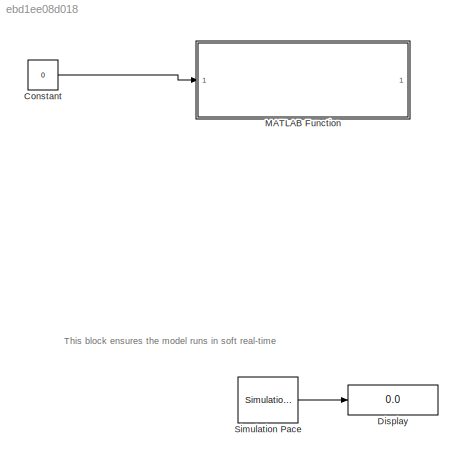
MODEL slx_ebd1ee08d018
KIND model
CONFIG AbsTol = auto
CONFIG EnableMultiTasking = off
CONFIG FixedStep = 0.01
CONFIG InitFcn = addpath(genpath('../'));arm_datafile
CONFIG MaxStep = auto
CONFIG MinStep = auto
CONFIG PostLoadFcn = cd(fileparts(which(bdroot)))
CONFIG RelTol = 1e-2
CONFIG SampleTimeConstraint = Unconstrained
CONFIG Solver = ode45
CONFIG SolverName = ode45
CONFIG StartFcn = %h = bindCallback('main')
CONFIG StartTime = 0.0
CONFIG StopTime = inf
WORKSPACE source: MAT-file member
WORKSPACE q_ws = [0 0 0 0 0 0]
BLOCK [Constant] Constant
  Value = 0
BLOCK [Display] Display
  Decimation = 1
  Ports = [1]
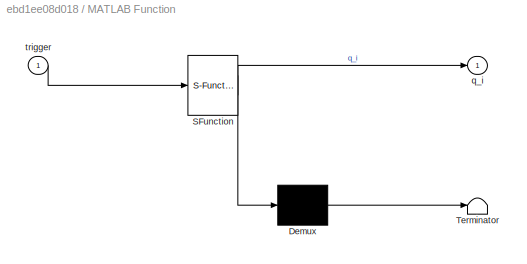
BLOCK [SubSystem] MATLAB Function
  ErrorFcn = Stateflow.Translate.translate
  PermitHierarchicalResolution = ExplicitOnly
  Ports = [1, 1]
  RequestExecContextInheritance = off
  SFBlockType = MATLAB Function
  TreatAsAtomicUnit = on
  Variant = off
BLOCK [Demux] MATLAB Function/ Demux 
  Outputs = 1
  Ports = [1, 1]
BLOCK [S-Function] MATLAB Function/ SFunction 
  EnableBusSupport = on
  FunctionName = sf_sfun
  Parameters = q_ws
  PortCounts = [1 2]
  Ports = [1, 2]
  SFcnIsStateOwnerBlock = off
  SFunctionDeploymentMode = off
  Tag = Stateflow S-Function main 2
BLOCK [Terminator] MATLAB Function/ Terminator 
BLOCK [Outport] MATLAB Function/q_i
  IconDisplay = Port number
BLOCK [Inport] MATLAB Function/trigger
  IconDisplay = Port number
BLOCK [Reference] Simulation Pace  REF=aerolibanimutils/Simulation Pace
  AttributesFormatString = %<SleepMode>\n%<SimulationPace> sec/sec
  Ports = [0, 1]
  SourceBlock = aerolibanimutils/Simulation Pace
  SourceProductBaseCode = AE
  SourceProductName = Aerospace Blockset
  SourceType = Simulation Pace
ANNOTATION (root): This block ensures the model runs in soft real-time
LINE Constant:1 -> MATLAB Function:1
LINE Simulation Pace:1 -> Display:1
CHART MATLAB Function states=1 transitions=1
  STATE_LABEL 'eML_blk_kernel()'
  STATE_LABEL 'SCRIPT:\nfunction q_i = SendAngles(trigger, q_ws)\npersistent i q trigger_pers\n\n\nif(isempty(i))\n   i = 0;\n   q = q_ws;\n   trigger_pers = trigger;\nend\n\nif(trigger ~= trigger_pers)\n   i = 0;\n   trigger_pers = trigger;\nend\n\nif(i == 0)\n    q = q_ws;\n    i = i+1;\nend\n\nq_i = q(i,:);\n\nif(i<size(q,1))\ni = i+1;\nend\n\n\n\n\n\n\n'
